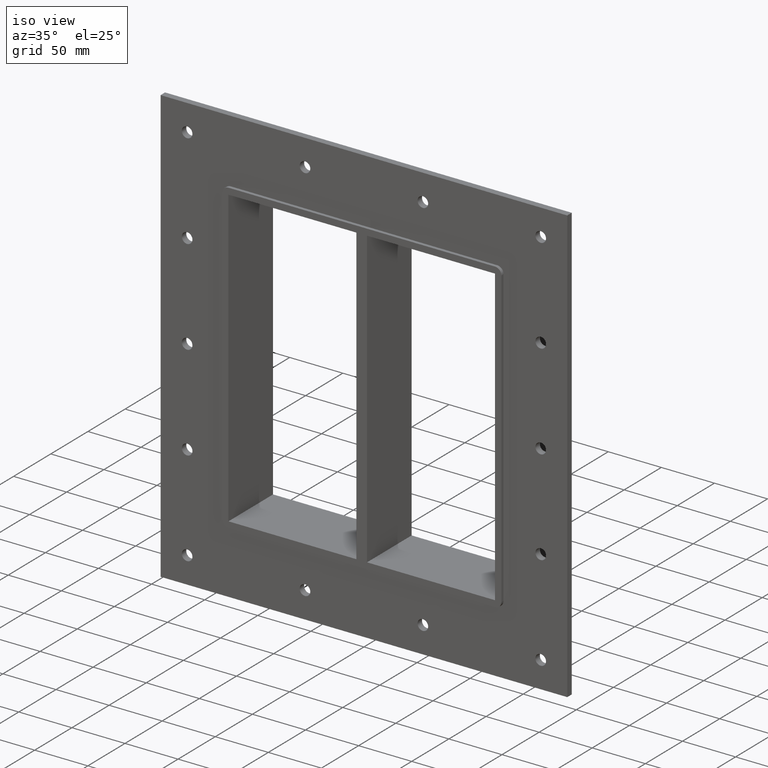
[diagram: clean part render]
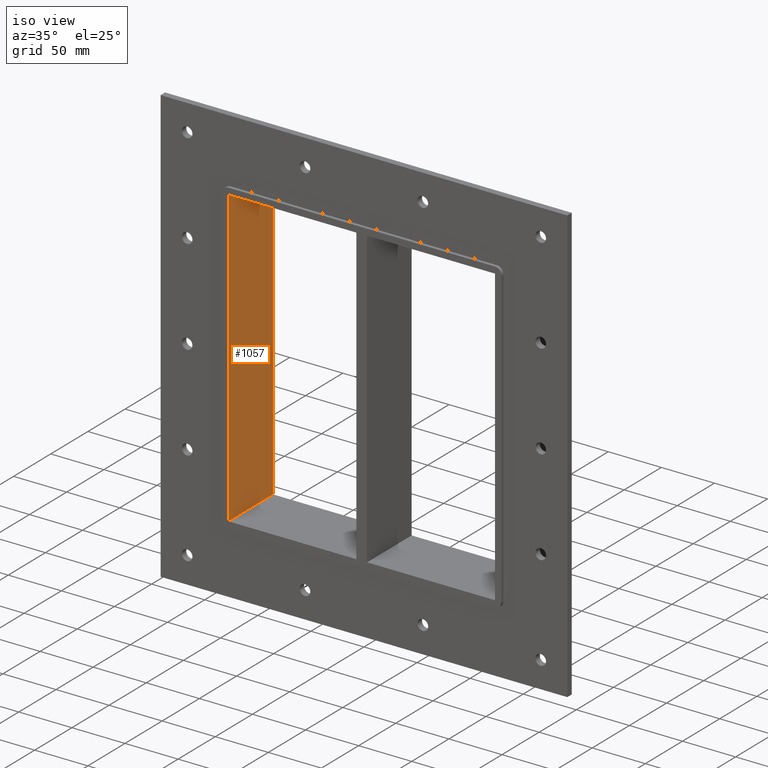
[diagram: same view with one face highlighted and labeled with its STEP entity id]
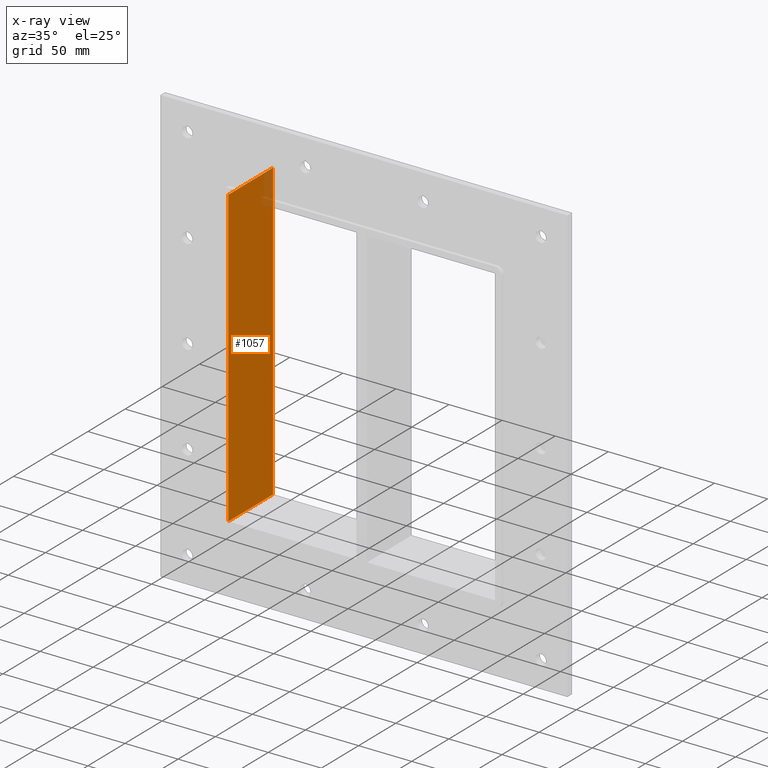
[diagram: x-ray of the same camera — body ghosted, the highlighted face saturated]
A machine part, iso view. The second image highlights one B-rep face of the part: STEP entity #1057.
The next image is the same camera in x-ray: the body ghosted, the highlighted face saturated — about 2% of this face is hidden behind the body in this view.
In plain terms, the highlighted planar face has unit normal (-1, 0, 0).
Its self-contained STEP definition (entity closure, byte-faithful):
#546=CARTESIAN_POINT('',(-125.50000000000003,57.0,-139.0));
#547=VERTEX_POINT('',#546);
#554=CARTESIAN_POINT('',(-125.50000000000003,-3.0,-139.0));
#555=VERTEX_POINT('',#554);
#556=CARTESIAN_POINT('',(-125.5,-3.0,-139.0));
#557=DIRECTION('',(0.0,1.0,0.0));
#558=VECTOR('',#557,60.0);
#559=LINE('',#556,#558);
#560=EDGE_CURVE('',#555,#547,#559,.T.);
#639=CARTESIAN_POINT('',(-125.50000000000003,-3.0,139.0));
#640=VERTEX_POINT('',#639);
#647=CARTESIAN_POINT('',(-125.50000000000003,57.0,139.0));
#648=VERTEX_POINT('',#647);
#649=CARTESIAN_POINT('',(-125.5,-3.0,139.0));
#650=DIRECTION('',(0.0,1.0,0.0));
#651=VECTOR('',#650,60.0);
#652=LINE('',#649,#651);
#653=EDGE_CURVE('',#640,#648,#652,.T.);
#1036=CARTESIAN_POINT('',(-125.5,0.0,-139.0));
#1037=DIRECTION('',(-1.0,0.0,0.0));
#1038=DIRECTION('',(0.0,0.0,1.0));
#1039=AXIS2_PLACEMENT_3D('',#1036,#1037,#1038);
#1040=PLANE('',#1039);
#1041=ORIENTED_EDGE('',*,*,#560,.T.);
#1042=CARTESIAN_POINT('',(-125.5,57.0,138.99999999999997));
#1043=DIRECTION('',(0.0,0.0,-1.0));
#1044=VECTOR('',#1043,278.0);
#1045=LINE('',#1042,#1044);
#1046=EDGE_CURVE('',#648,#547,#1045,.T.);
#1047=ORIENTED_EDGE('',*,*,#1046,.F.);
#1048=ORIENTED_EDGE('',*,*,#653,.F.);
#1049=CARTESIAN_POINT('',(-125.5,-3.0,-139.0));
#1050=DIRECTION('',(0.0,0.0,1.0));
#1051=VECTOR('',#1050,278.0);
#1052=LINE('',#1049,#1051);
#1053=EDGE_CURVE('',#555,#640,#1052,.T.);
#1054=ORIENTED_EDGE('',*,*,#1053,.F.);
#1055=EDGE_LOOP('',(#1041,#1047,#1048,#1054));
#1056=FACE_OUTER_BOUND('',#1055,.T.);
#1057=ADVANCED_FACE('',(#1056),#1040,.F.);